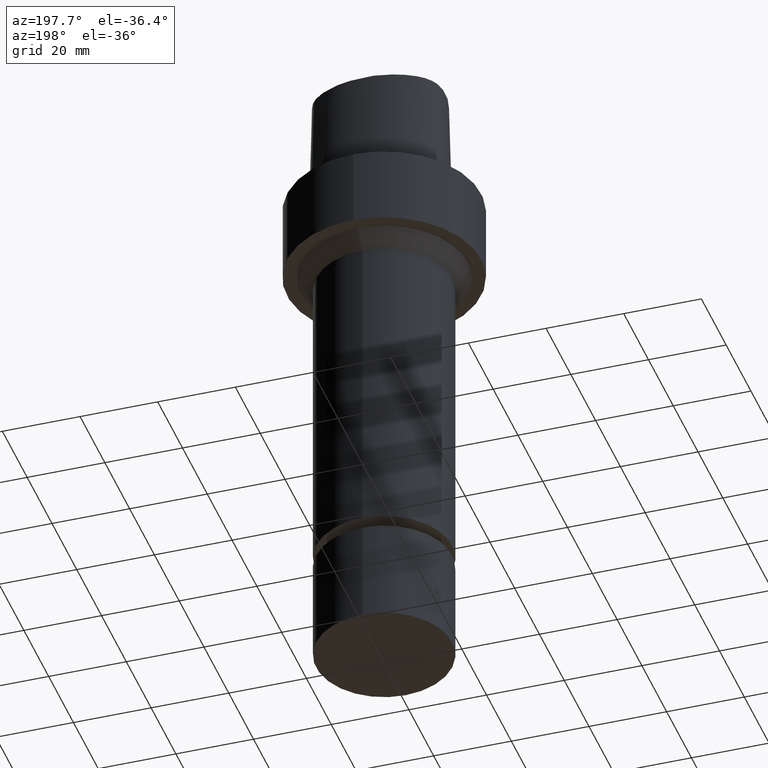
[diagram: clean part render]
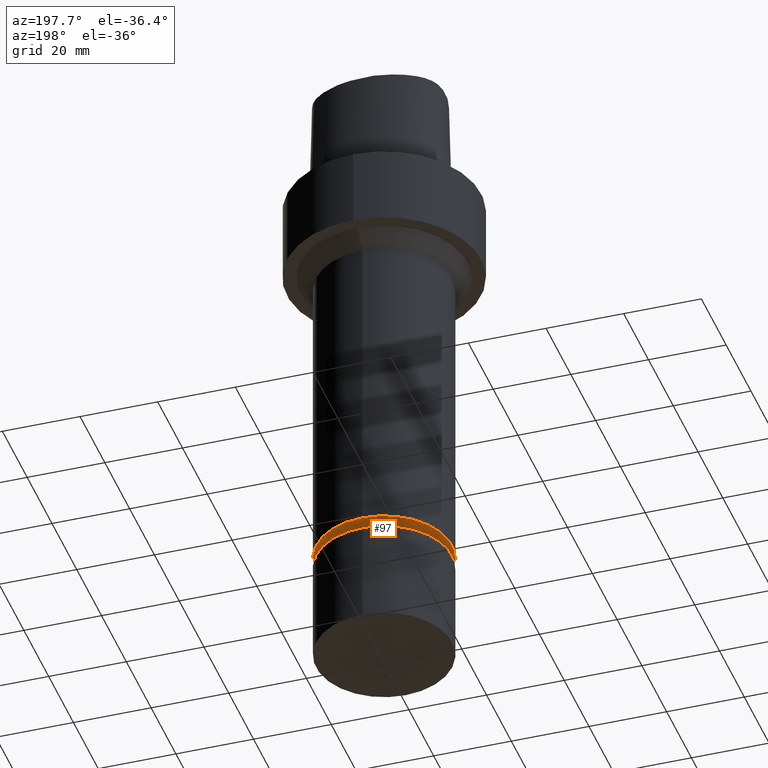
[diagram: same view with one face highlighted and labeled with its STEP entity id]
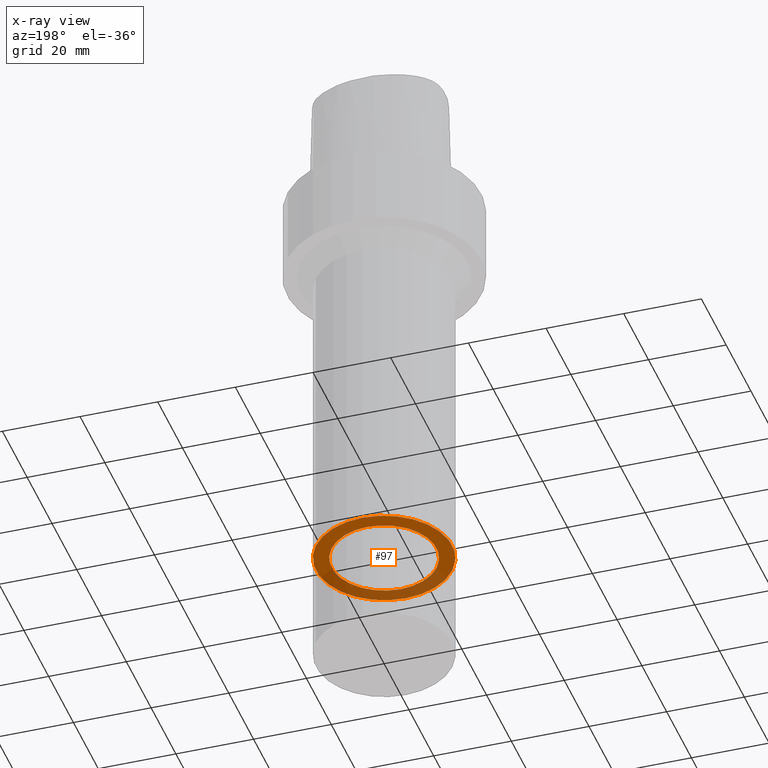
[diagram: x-ray of the same camera — body ghosted, the highlighted face saturated]
A machine part, auxiliary view. The second image highlights one B-rep face of the part: STEP entity #97.
The next image is the same camera in x-ray: the body ghosted, the highlighted face saturated — about 37% of this face is hidden behind the body in this view.
In plain terms, the highlighted planar face has unit normal (0, 0, -1).
Its self-contained STEP definition (entity closure, byte-faithful):
#74=EDGE_CURVE('Unnamed[1]',#181,#181,#182,.T.);
#97=ADVANCED_FACE('Unnamed[1]',(#215,#216),#217,.T.);
#106=EDGE_CURVE('Unnamed[1]',#228,#228,#229,.T.);
#181=VERTEX_POINT('',#704);
#182=CIRCLE('',#705,17.4999999999997);
#215=FACE_BOUND('',#795,.T.);
#216=FACE_OUTER_BOUND('',#796,.T.);
#217=PLANE('',#797);
#228=VERTEX_POINT('',#906);
#229=CIRCLE('',#907,13.4999999999908);
#704=CARTESIAN_POINT('',(6.46001186550228E-015,17.4999999999997,-105.5));
#705=AXIS2_PLACEMENT_3D('',#1004,#1005,#1006);
#795=EDGE_LOOP('',(#1039));
#796=EDGE_LOOP('',(#1040));
#797=AXIS2_PLACEMENT_3D('',#1041,#1042,#1043);
#906=CARTESIAN_POINT('',(6.46001186550228E-015,13.4999999999908,-105.5));
#907=AXIS2_PLACEMENT_3D('',#1048,#1049,#1050);
#1004=CARTESIAN_POINT('',(6.46001186550228E-015,1.29200237310045E-014,-105.5));
#1005=DIRECTION('',(6.12323399573677E-017,1.22464679914735E-016,-1.0));
#1006=DIRECTION('',(-1.23259516440783E-032,1.0,1.22464679914735E-016));
#1039=ORIENTED_EDGE('',*,*,#106,.F.);
#1040=ORIENTED_EDGE('',*,*,#74,.T.);
#1041=CARTESIAN_POINT('',(6.46001186550228E-015,15.4999999999953,-105.5));
#1042=DIRECTION('',(6.12323399573677E-017,1.22464679914735E-016,-1.0));
#1043=DIRECTION('',(-1.23259516440783E-032,1.0,1.22464679914735E-016));
#1048=CARTESIAN_POINT('',(6.46001186550228E-015,1.29200237310045E-014,-105.5));
#1049=DIRECTION('',(6.12323399573677E-017,1.22464679914735E-016,-1.0));
#1050=DIRECTION('',(-1.23259516440783E-032,1.0,1.22464679914735E-016));